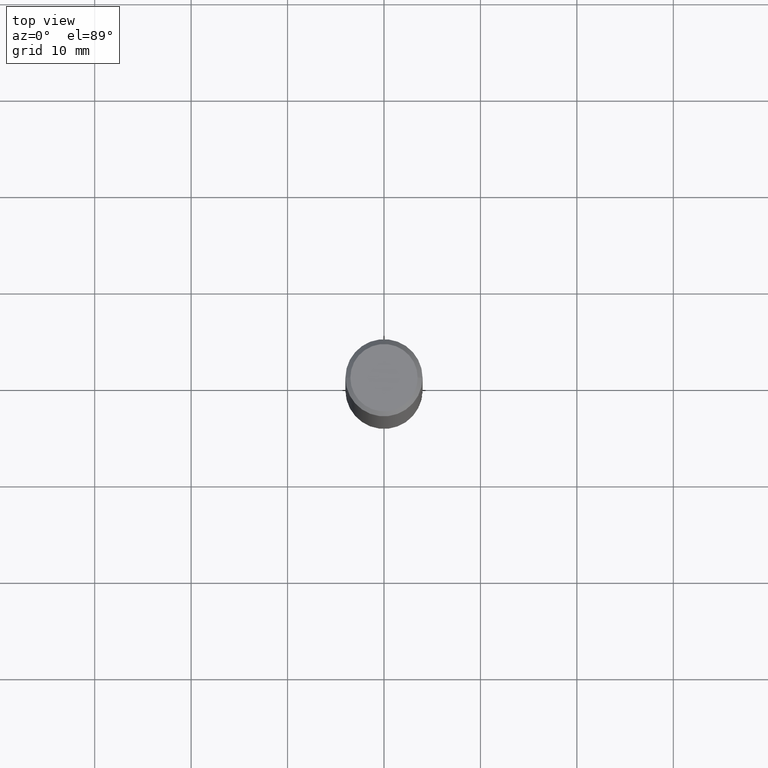
[diagram: clean part render]
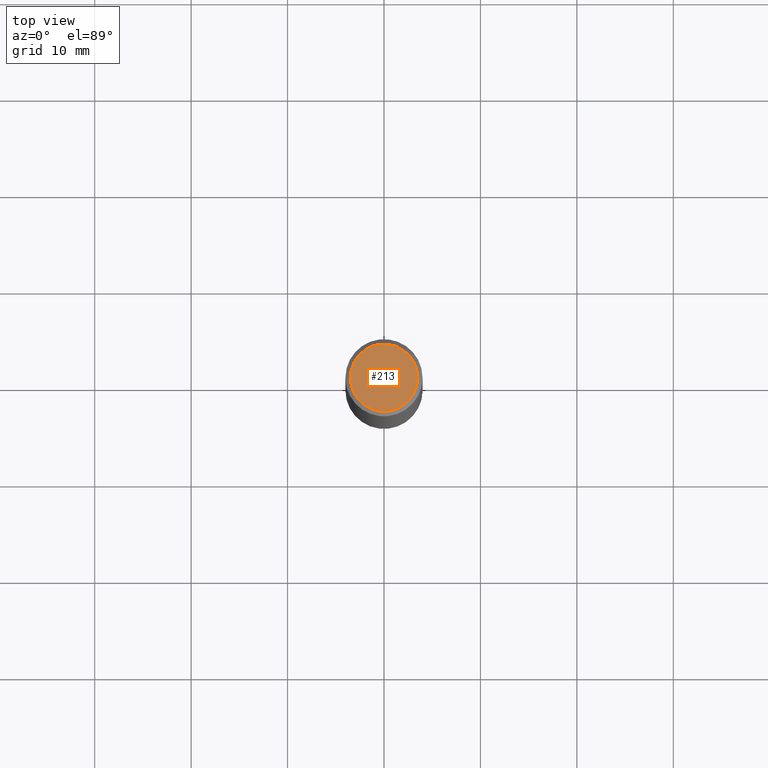
[diagram: same view with one face highlighted and labeled with its STEP entity id]
A machine part, top view. The second image highlights one B-rep face of the part: STEP entity #213.
In plain terms, the highlighted planar face has unit normal (0, -0, -1).
Its self-contained STEP definition (entity closure, byte-faithful):
#2 = AXIS2_PLACEMENT_3D ( 'NONE', #61, #295, #33 ) ;
#7 = CARTESIAN_POINT ( 'NONE',  ( 9.601573681818602922E-16, 0.1374999999999998446, -4.758101716008314943E-16 ) ) ;
#33 = DIRECTION ( 'NONE',  ( 1.000000000000000000, -6.982962677686265922E-15, 4.876173381029105647E-29 ) ) ;
#57 = CARTESIAN_POINT ( 'NONE',  ( -2.087702828670439639E-46, 2.980686340760894400E-32, 8.537024980200822558E-18 ) ) ;
#61 = CARTESIAN_POINT ( 'NONE',  ( -2.087702828670439639E-46, 2.980686340760894400E-32, 8.537024980200822558E-18 ) ) ;
#83 = DIRECTION ( 'NONE',  ( 2.438088387897960049E-29, -3.491481338843145188E-15, -1.000000000000000000 ) ) ;
#89 = CARTESIAN_POINT ( 'NONE',  ( 0.1374999999999998446, -1.046838268059731308E-15, 8.537024980207840646E-18 ) ) ;
#135 = AXIS2_PLACEMENT_3D ( 'NONE', #57, #179, #288 ) ;
#149 = EDGE_CURVE ( 'NONE', #214, #303, #197, .T. ) ;
#157 = AXIS2_PLACEMENT_3D ( 'NONE', #7, #83, #237 ) ;
#158 = ORIENTED_EDGE ( 'NONE', *, *, #149, .T. ) ;
#179 = DIRECTION ( 'NONE',  ( -2.445468806185136597E-29, 3.491481338843145583E-15, 1.000000000000000000 ) ) ;
#197 = CIRCLE ( 'NONE', #2, 0.1374999999999998446 ) ;
#213 = ADVANCED_FACE ( 'NONE', ( #290 ), #229, .F. ) ;
#214 = VERTEX_POINT ( 'NONE', #89 ) ;
#216 = CIRCLE ( 'NONE', #135, 0.1374999999999998446 ) ;
#217 = EDGE_LOOP ( 'NONE', ( #348, #158 ) ) ;
#229 = PLANE ( 'NONE',  #157 ) ;
#237 = DIRECTION ( 'NONE',  ( -1.000000000000000000, 6.982962677686265922E-15, -4.876176775795935793E-29 ) ) ;
#238 = EDGE_CURVE ( 'NONE', #303, #214, #216, .T. ) ;
#269 = CARTESIAN_POINT ( 'NONE',  ( -0.1374999999999998446, 9.950721815702915469E-16, 8.537024980193986277E-18 ) ) ;
#288 = DIRECTION ( 'NONE',  ( 1.000000000000000000, -6.982962677686265922E-15, 4.876173381029105647E-29 ) ) ;
#290 = FACE_OUTER_BOUND ( 'NONE', #217, .T. ) ;
#295 = DIRECTION ( 'NONE',  ( -2.445468806185136597E-29, 3.491481338843145583E-15, 1.000000000000000000 ) ) ;
#303 = VERTEX_POINT ( 'NONE', #269 ) ;
#348 = ORIENTED_EDGE ( 'NONE', *, *, #238, .T. ) ;